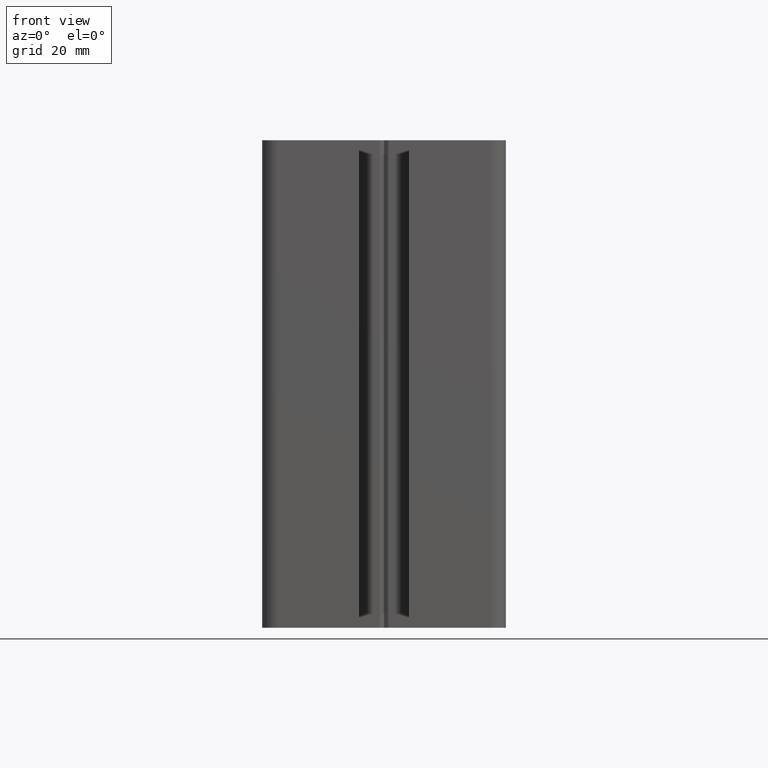
[diagram: clean part render]
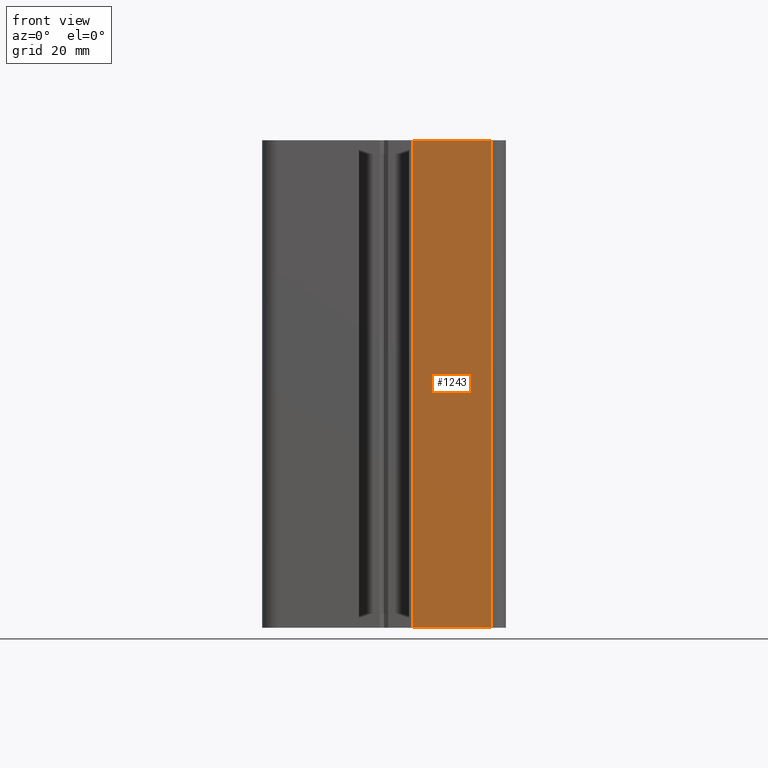
[diagram: same view with one face highlighted and labeled with its STEP entity id]
A machine part, front view. The second image highlights one B-rep face of the part: STEP entity #1243.
In plain terms, the highlighted planar face has unit normal (0, 1, 0).
Its self-contained STEP definition (entity closure, byte-faithful):
#185 = VERTEX_POINT ( 'NONE', #5076 ) ;
#204 = VERTEX_POINT ( 'NONE', #5112 ) ;
#205 = EDGE_CURVE ( 'NONE', #204, #185, #5108, .T. ) ;
#1230 = ORIENTED_EDGE ( 'NONE', *, *, #1240, .T. ) ;
#1240 = EDGE_CURVE ( 'NONE', #4261, #204, #6845, .T. ) ;
#1243 = ADVANCED_FACE ( 'NONE', ( #6855 ), #6844, .F. ) ;
#1255 = EDGE_LOOP ( 'NONE', ( #3790, #3824, #1292, #1230 ) ) ;
#1289 = EDGE_CURVE ( 'NONE', #4264, #185, #6943, .T. ) ;
#1292 = ORIENTED_EDGE ( 'NONE', *, *, #4247, .F. ) ;
#3790 = ORIENTED_EDGE ( 'NONE', *, *, #205, .T. ) ;
#3824 = ORIENTED_EDGE ( 'NONE', *, *, #1289, .F. ) ;
#4247 = EDGE_CURVE ( 'NONE', #4261, #4264, #11484, .T. ) ;
#4261 = VERTEX_POINT ( 'NONE', #11523 ) ;
#4264 = VERTEX_POINT ( 'NONE', #11530 ) ;
#5076 = CARTESIAN_POINT ( 'NONE',  ( 22.00000000000000000, -50.00000000000022000, 0.0000000000000000000 ) ) ;
#5105 = DIRECTION ( 'NONE',  ( 1.000000000000000000, 0.0000000000000000000, 0.0000000000000000000 ) ) ;
#5106 = VECTOR ( 'NONE', #5105, 1000.000000000000000 ) ;
#5107 = CARTESIAN_POINT ( 'NONE',  ( 5.799999237060546900, -50.00000000000022000, 0.0000000000000000000 ) ) ;
#5108 = LINE ( 'NONE', #5107, #5106 ) ;
#5112 = CARTESIAN_POINT ( 'NONE',  ( 5.799999237060546900, -50.00000000000022000, 0.0000000000000000000 ) ) ;
#6844 = PLANE ( 'NONE',  #6865 ) ;
#6845 = LINE ( 'NONE', #6897, #6896 ) ;
#6855 = FACE_OUTER_BOUND ( 'NONE', #1255, .T. ) ;
#6861 = CARTESIAN_POINT ( 'NONE',  ( 5.799999237060546900, -50.00000000000022000, 100.0000000000000000 ) ) ;
#6865 = AXIS2_PLACEMENT_3D ( 'NONE', #6861, #6891, #6890 ) ;
#6890 = DIRECTION ( 'NONE',  ( 0.0000000000000000000, -0.0000000000000000000, 1.000000000000000000 ) ) ;
#6891 = DIRECTION ( 'NONE',  ( 0.0000000000000000000, 1.000000000000000000, 0.0000000000000000000 ) ) ;
#6895 = DIRECTION ( 'NONE',  ( -0.0000000000000000000, -0.0000000000000000000, -1.000000000000000000 ) ) ;
#6896 = VECTOR ( 'NONE', #6895, 1000.000000000000000 ) ;
#6897 = CARTESIAN_POINT ( 'NONE',  ( 5.799999237060546900, -50.00000000000022000, 100.0000000000000000 ) ) ;
#6940 = DIRECTION ( 'NONE',  ( -0.0000000000000000000, -0.0000000000000000000, -1.000000000000000000 ) ) ;
#6941 = VECTOR ( 'NONE', #6940, 1000.000000000000000 ) ;
#6942 = CARTESIAN_POINT ( 'NONE',  ( 22.00000000000000000, -50.00000000000022000, 100.0000000000000000 ) ) ;
#6943 = LINE ( 'NONE', #6942, #6941 ) ;
#11483 = CARTESIAN_POINT ( 'NONE',  ( 5.799999237060546900, -50.00000000000022000, 100.0000000000000000 ) ) ;
#11484 = LINE ( 'NONE', #11483, #11543 ) ;
#11523 = CARTESIAN_POINT ( 'NONE',  ( 5.799999237060546900, -50.00000000000022000, 100.0000000000000000 ) ) ;
#11530 = CARTESIAN_POINT ( 'NONE',  ( 22.00000000000000000, -50.00000000000022000, 100.0000000000000000 ) ) ;
#11542 = DIRECTION ( 'NONE',  ( 1.000000000000000000, 0.0000000000000000000, 0.0000000000000000000 ) ) ;
#11543 = VECTOR ( 'NONE', #11542, 1000.000000000000000 ) ;